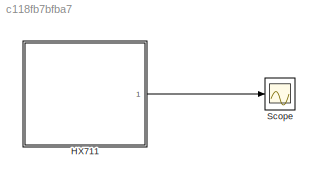
MODEL slx_c118fb7bfba7
KIND model
CONFIG AbsTol = auto
CONFIG EnableMultiTasking = on
CONFIG FixedStep = auto
CONFIG MaxStep = auto
CONFIG MinStep = auto
CONFIG RelTol = 1e-3
CONFIG SampleTimeConstraint = Unconstrained
CONFIG Solver = FixedStepAuto
CONFIG SolverName = FixedStepAuto
CONFIG StartTime = 0.0
CONFIG StopTime = inf
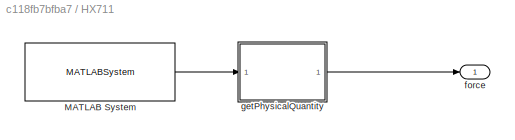
BLOCK [SubSystem] HX711
  Ports = [0, 1]
  RequestExecContextInheritance = off
BLOCK [MATLABSystem] HX711/MATLAB System
  MaskDisplay = disp('HX711Driver');\nport_label('output',1,'rawData');
  MaskType = HX711Driver
  Ports = [0, 1]
  SampleTime = sampleTime
  System = HX711Driver
  doutPin = doutPin
  sckPin = sckPin
BLOCK [Outport] HX711/force
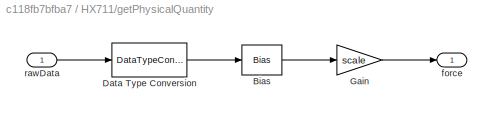
BLOCK [SubSystem] HX711/getPhysicalQuantity
  Ports = [1, 1]
  RequestExecContextInheritance = off
BLOCK [Bias] HX711/getPhysicalQuantity/Bias
  Bias = -offset
  SaturateOnIntegerOverflow = off
BLOCK [DataTypeConversion] HX711/getPhysicalQuantity/Data Type Conversion
  RndMeth = Floor
  SaturateOnIntegerOverflow = off
BLOCK [Gain] HX711/getPhysicalQuantity/Gain
  Gain = scale
BLOCK [Outport] HX711/getPhysicalQuantity/force
BLOCK [Inport] HX711/getPhysicalQuantity/rawData
BLOCK [Scope] Scope
  Floating = off
  NumInputPorts = 1
  Ports = [1]
  ScopeSpecificationString = Simulink.scopes.TimeScopeBlockCfg('CurrentConfiguration', extmgr.ConfigurationSet(extmgr.Configuration('Core','General UI',true),extmgr.Configuration('Core','Source UI',true),extmgr.Configuration('Sources','WiredSimulink',true),extmgr.Configuration('Visuals','Time Domain',true,'SerializedDisplays',{struct('MinYLimReal','8122989.625','MaxYLimReal','8123783.375','YLabelReal','','MinYLimMag','8122989...<+1475ch>
LINE HX711/MATLAB System:1 -> HX711/getPhysicalQuantity:1
LINE HX711/getPhysicalQuantity/Bias:1 -> HX711/getPhysicalQuantity/Gain:1
LINE HX711/getPhysicalQuantity/Data Type Conversion:1 -> HX711/getPhysicalQuantity/Bias:1
LINE HX711/getPhysicalQuantity/Gain:1 -> HX711/getPhysicalQuantity/force:1
LINE HX711/getPhysicalQuantity/rawData:1 -> HX711/getPhysicalQuantity/Data Type Conversion:1
LINE HX711/getPhysicalQuantity:1 -> HX711/force:1
LINE HX711:1 -> Scope:1
